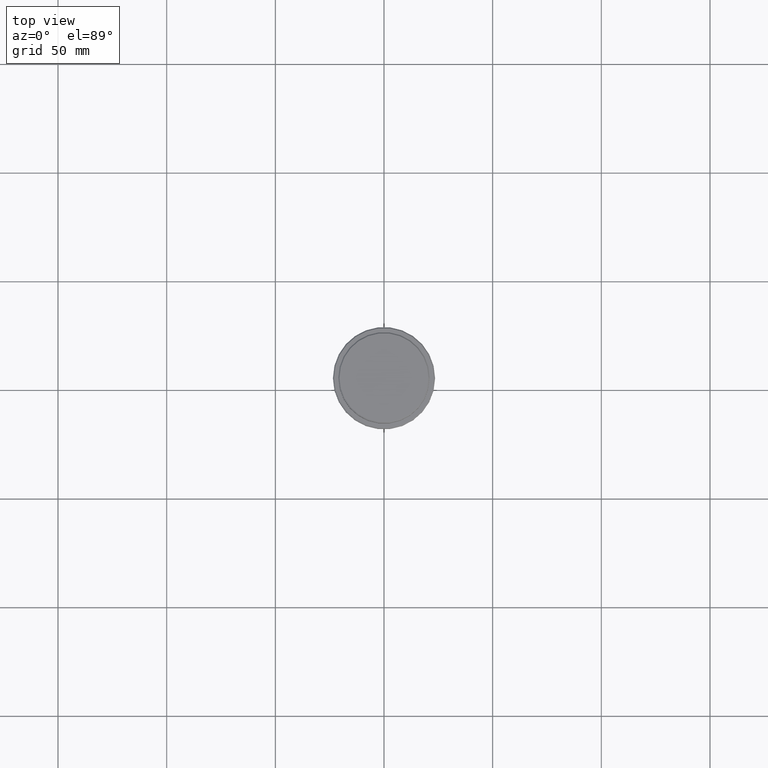
[diagram: clean part render]
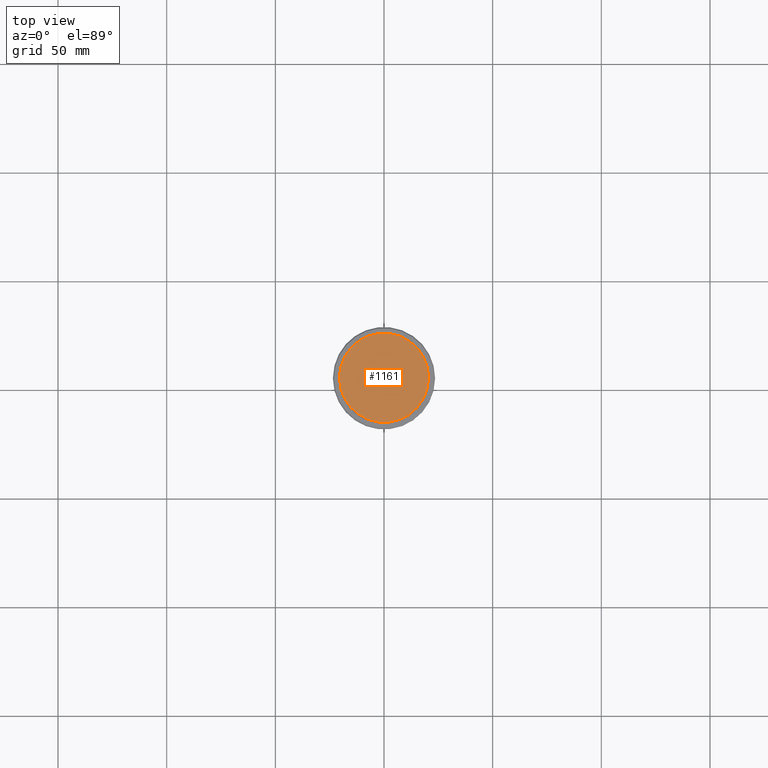
[diagram: same view with one face highlighted and labeled with its STEP entity id]
A machine part, top view. The second image highlights one B-rep face of the part: STEP entity #1161.
In plain terms, the highlighted planar face has unit normal (0, -0, 1).
Its self-contained STEP definition (entity closure, byte-faithful):
#16 = DIRECTION ( 'NONE',  ( 1.000000000000000000, 0.000000000000000000, 0.000000000000000000 ) ) ;
#113 = DIRECTION ( 'NONE',  ( -0.000000000000000000, -0.000000000000000000, 1.000000000000000000 ) ) ;
#115 = EDGE_CURVE ( 'NONE', #862, #994, #955, .T. ) ;
#171 = EDGE_CURVE ( 'NONE', #994, #862, #184, .T. ) ;
#184 = CIRCLE ( 'NONE', #482, 20.49999999999998934 ) ;
#235 = PLANE ( 'NONE',  #256 ) ;
#256 = AXIS2_PLACEMENT_3D ( 'NONE', #997, #773, #340 ) ;
#340 = DIRECTION ( 'NONE',  ( 1.000000000000000000, 0.000000000000000000, 0.000000000000000000 ) ) ;
#361 = EDGE_LOOP ( 'NONE', ( #884, #901 ) ) ;
#482 = AXIS2_PLACEMENT_3D ( 'NONE', #739, #113, #16 ) ;
#663 = FACE_OUTER_BOUND ( 'NONE', #361, .T. ) ;
#739 = CARTESIAN_POINT ( 'NONE',  ( 0.000000000000000000, 0.000000000000000000, 0.000000000000000000 ) ) ;
#773 = DIRECTION ( 'NONE',  ( 0.000000000000000000, -0.000000000000000000, 1.000000000000000000 ) ) ;
#831 = DIRECTION ( 'NONE',  ( -0.000000000000000000, -0.000000000000000000, 1.000000000000000000 ) ) ;
#862 = VERTEX_POINT ( 'NONE', #1228 ) ;
#884 = ORIENTED_EDGE ( 'NONE', *, *, #115, .T. ) ;
#901 = ORIENTED_EDGE ( 'NONE', *, *, #171, .T. ) ;
#955 = CIRCLE ( 'NONE', #1142, 20.49999999999998934 ) ;
#961 = CARTESIAN_POINT ( 'NONE',  ( 20.49999999999998934, 2.541142108230757085E-15, 0.000000000000000000 ) ) ;
#994 = VERTEX_POINT ( 'NONE', #961 ) ;
#997 = CARTESIAN_POINT ( 'NONE',  ( 0.000000000000000000, 0.000000000000000000, 0.000000000000000000 ) ) ;
#1036 = DIRECTION ( 'NONE',  ( 1.000000000000000000, 0.000000000000000000, 0.000000000000000000 ) ) ;
#1060 = CARTESIAN_POINT ( 'NONE',  ( 0.000000000000000000, 0.000000000000000000, 0.000000000000000000 ) ) ;
#1142 = AXIS2_PLACEMENT_3D ( 'NONE', #1060, #831, #1036 ) ;
#1161 = ADVANCED_FACE ( 'NONE', ( #663 ), #235, .T. ) ;
#1228 = CARTESIAN_POINT ( 'NONE',  ( -20.49999999999998934, 0.000000000000000000, 0.000000000000000000 ) ) ;